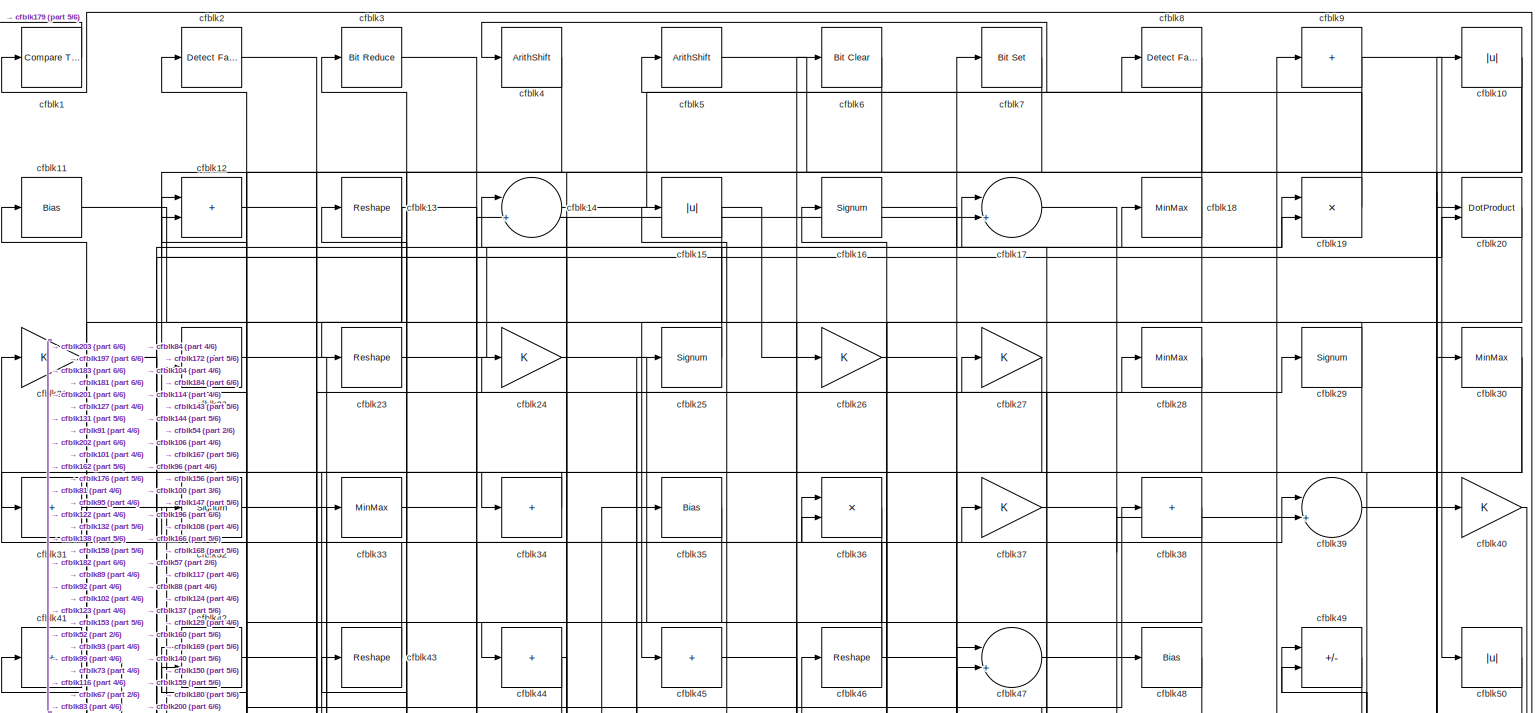
[diagram: root canvas - part 1/6, full width, top band]
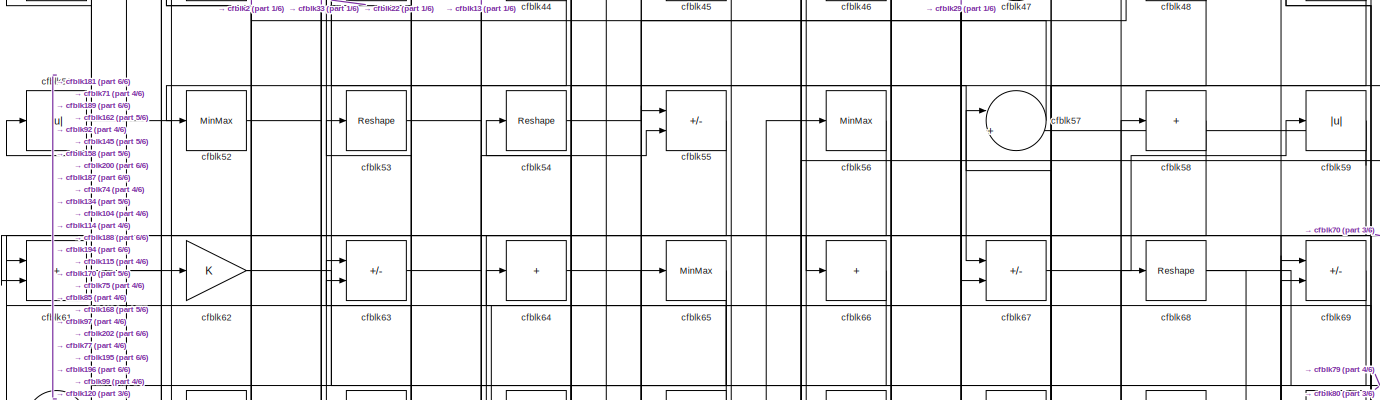
[diagram: root canvas - part 2/6, full width, top band]
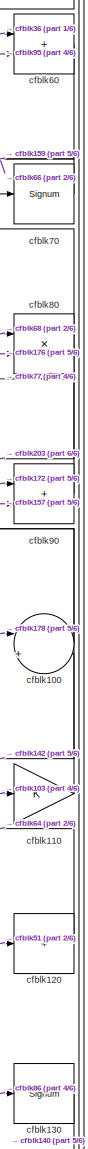
[diagram: root canvas - part 3/6, middle right region]
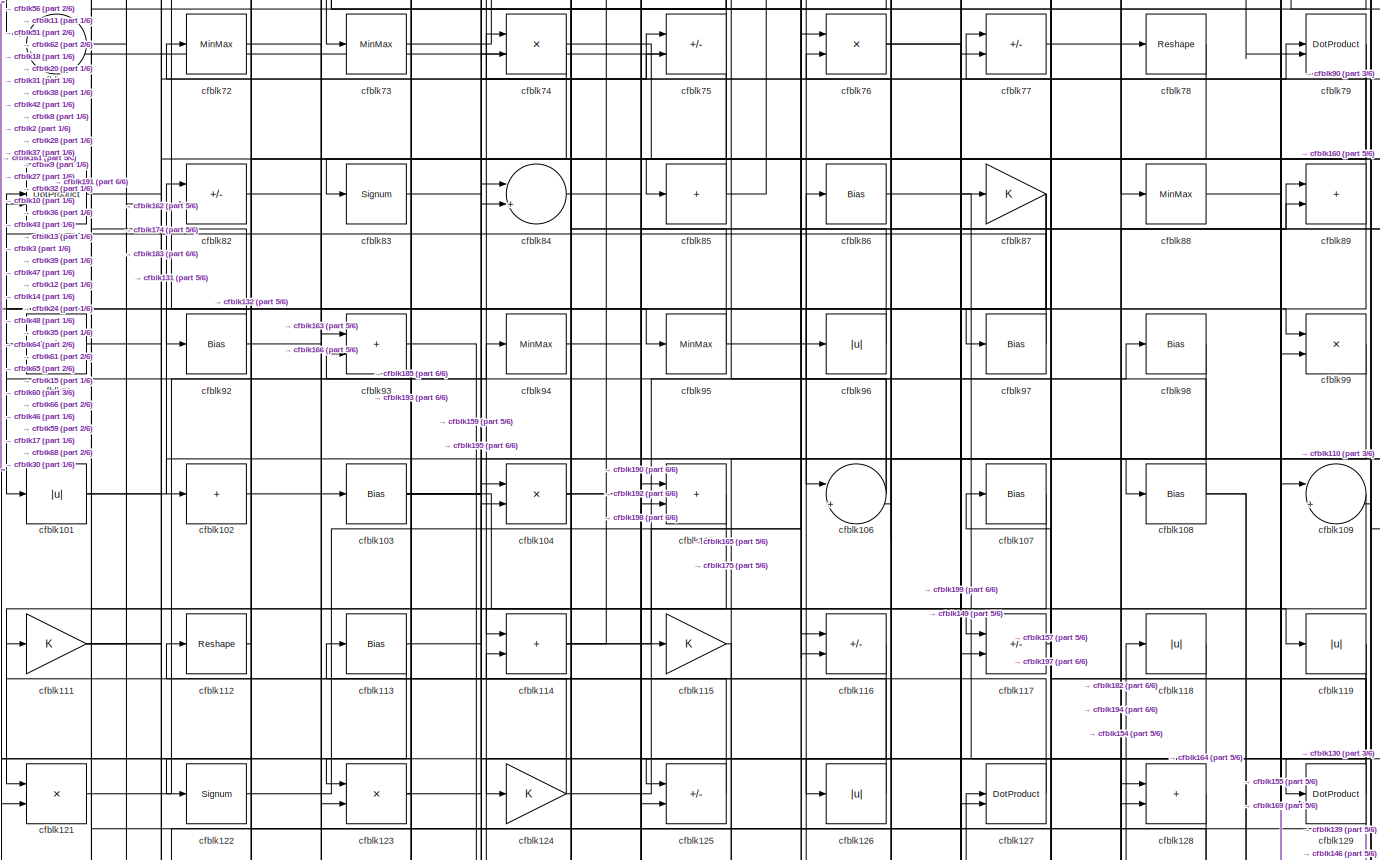
[diagram: root canvas - part 4/6, full width, middle band]
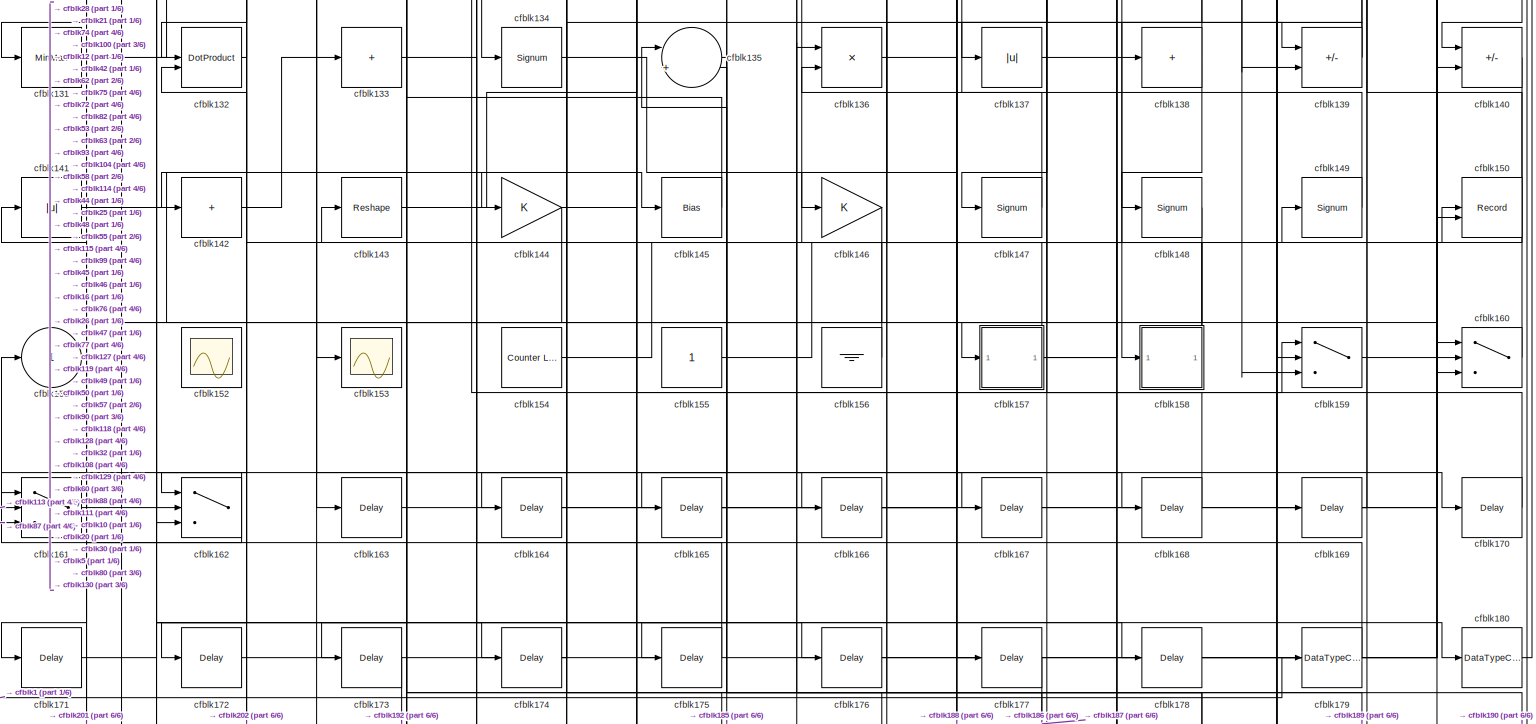
[diagram: root canvas - part 5/6, full width, bottom band]
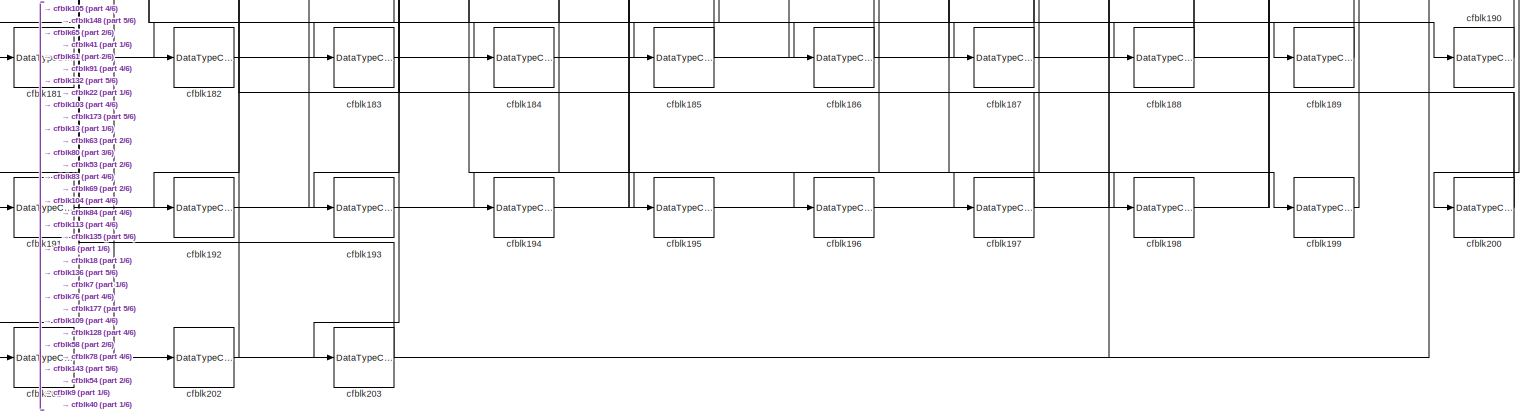
[diagram: root canvas - part 6/6, full width, bottom band]
MODEL slx_80e2cc279460
KIND model
CONFIG AbsTol = auto
CONFIG EnableMultiTasking = off
CONFIG FixedStep = auto
CONFIG MaxStep = auto
CONFIG MinStep = auto
CONFIG RelTol = 1e-3
CONFIG SampleTimeConstraint = Unconstrained
CONFIG SolverName = VariableStepAuto
CONFIG StartTime = 0.0
CONFIG StopTime = 10.0
BLOCK [Reference] cfblk1  REF=hdlsllib/Logic and Bit
Operations/Compare
To Constant
  SourceBlock = hdlsllib/Logic and Bit\nOperations/Compare\nTo Constant
  SourceType = Compare To Constant
BLOCK [Abs] cfblk10
  SaturateOnIntegerOverflow = off
BLOCK [Sum] cfblk100
  Inputs = |++
BLOCK [Abs] cfblk101
  SaturateOnIntegerOverflow = off
BLOCK [Sum] cfblk102
  IconShape = rectangular
  Inputs = +
BLOCK [Bias] cfblk103
  Bias = 0.0
  SaturateOnIntegerOverflow = off
BLOCK [Product] cfblk104
  Inputs = */
  RndMeth = Zero
  SaturateOnIntegerOverflow = on
BLOCK [Sum] cfblk105
  IconShape = rectangular
BLOCK [Sum] cfblk106
  Inputs = |++
BLOCK [Bias] cfblk107
  Bias = 0.0
  SaturateOnIntegerOverflow = off
BLOCK [Bias] cfblk108
  Bias = 0.0
  SaturateOnIntegerOverflow = off
BLOCK [Sum] cfblk109
  Inputs = |++
BLOCK [Bias] cfblk11
  Bias = 0.0
  SaturateOnIntegerOverflow = off
BLOCK [Gain] cfblk110
BLOCK [Gain] cfblk111
BLOCK [Reshape] cfblk112
BLOCK [Bias] cfblk113
  Bias = 0.0
  SaturateOnIntegerOverflow = off
BLOCK [Sum] cfblk114
  IconShape = rectangular
BLOCK [Gain] cfblk115
BLOCK [Sum] cfblk116
  IconShape = rectangular
  Inputs = +-
BLOCK [Sum] cfblk117
  IconShape = rectangular
  Inputs = +-
BLOCK [Abs] cfblk118
  SaturateOnIntegerOverflow = off
BLOCK [Abs] cfblk119
  SaturateOnIntegerOverflow = off
BLOCK [Sum] cfblk12
  IconShape = rectangular
BLOCK [Sum] cfblk120
  IconShape = rectangular
  Inputs = +
BLOCK [Product] cfblk121
  Inputs = */
  RndMeth = Zero
  SaturateOnIntegerOverflow = on
BLOCK [Signum] cfblk122
BLOCK [Product] cfblk123
  Inputs = */
  RndMeth = Zero
  SaturateOnIntegerOverflow = on
BLOCK [Gain] cfblk124
BLOCK [Sum] cfblk125
  IconShape = rectangular
  Inputs = +-
BLOCK [Abs] cfblk126
  SaturateOnIntegerOverflow = off
BLOCK [DotProduct] cfblk127
  OutDataTypeStr = Inherit: Inherit via internal rule
BLOCK [Sum] cfblk128
  IconShape = rectangular
BLOCK [DotProduct] cfblk129
  OutDataTypeStr = Inherit: Inherit via internal rule
BLOCK [Reshape] cfblk13
BLOCK [Signum] cfblk130
BLOCK [MinMax] cfblk131
BLOCK [DotProduct] cfblk132
  OutDataTypeStr = Inherit: Inherit via internal rule
BLOCK [Sum] cfblk133
  IconShape = rectangular
  Inputs = +
BLOCK [Signum] cfblk134
BLOCK [Sum] cfblk135
  Inputs = |++
BLOCK [Product] cfblk136
  Inputs = */
  RndMeth = Zero
  SaturateOnIntegerOverflow = on
BLOCK [Abs] cfblk137
  SaturateOnIntegerOverflow = off
BLOCK [Sum] cfblk138
  IconShape = rectangular
  Inputs = +
BLOCK [Sum] cfblk139
  IconShape = rectangular
  Inputs = +-
BLOCK [Sum] cfblk14
  Inputs = |++
BLOCK [Sum] cfblk140
  IconShape = rectangular
  Inputs = +-
BLOCK [Abs] cfblk141
  SaturateOnIntegerOverflow = off
BLOCK [Sum] cfblk142
  IconShape = rectangular
  Inputs = +
BLOCK [Reshape] cfblk143
BLOCK [Gain] cfblk144
BLOCK [Bias] cfblk145
  Bias = 0.0
  SaturateOnIntegerOverflow = off
BLOCK [Gain] cfblk146
BLOCK [Signum] cfblk147
BLOCK [Signum] cfblk148
BLOCK [Signum] cfblk149
BLOCK [Abs] cfblk15
  SaturateOnIntegerOverflow = off
BLOCK [Record] cfblk150
  CompatibilityTag = XY
  FileSettingsInternal = {"entries":[{"content":{"excelSettings":{"content":{},"type":"Streamout.ExcelSettings"}},"type":"Streamout.FileSettingStorage","uuid":""}],"packageUris":["http:\/\/schema.mathworks.com\/mf0\/streamout_blocks\/R2020a"],"version":"1.0"}
  Layout = [1 1]
  SignalsInternal = {"entries":[{"content":{"signals":[{"content":{"blockPath":[],"dimensions":[1],"domain":"","lineColor":"#a2142f","plots":[1],"port":1,"sid":[""],"signalID":2475,"signalName":"cfblk157"},"type":"RecordBlkView.Signal","uuid":""},{"content":{"blockPath":[],"dimensions":[1],"domain":"","lineColor":"#139fff","plots":[1],"port":2,"sid":[""],"signalID":2479,"signalName":"cfblk10"},"type":"RecordBlkView.S...<+163ch>
  VisualizationBindings = {"xyplotplugin":{"info":[{"series":[{"bindingParametersList":[{"parameter":"X-Axis","signalID":2475,"signalName":"cfblk157"},{"parameter":"Y-Axis","signalID":2479,"signalName":"cfblk10"}],"seriesID":51744}],"subplotID":1}]}}
  st = -1
BLOCK [Outport] cfblk151
  VectorParamsAs1DForOutWhenUnconnected = off
BLOCK [Scope] cfblk152
  Floating = on
  NumInputPorts = 1
  ScopeSpecificationString = Simulink.scopes.TimeScopeBlockCfg('CurrentConfiguration', extmgr.ConfigurationSet(extmgr.Configuration('Core','General UI',true,'FigureColor',[0.156862745098039 0.156862745098039 0.156862745098039]),extmgr.Configuration('Core','Source UI',true),extmgr.Configuration('Sources','WiredSimulink',true,'DataLoggingVariableName','ScopeData1','DataLoggingSaveFormat','StructureWithTime','DataLoggingLimitDat...<+2713ch>
BLOCK [Scope] cfblk153
  Floating = off
  NumInputPorts = 1
  ScopeSpecificationString = Simulink.scopes.TimeScopeBlockCfg('CurrentConfiguration', extmgr.ConfigurationSet(extmgr.Configuration('Core','General UI',true),extmgr.Configuration('Core','Source UI',true),extmgr.Configuration('Sources','WiredSimulink',true,'DataLoggingVariableName','ScopeData2','DataLoggingSaveFormat','Array','DataLoggingLimitDataPoints',true,'DataLoggingDecimation','1'),extmgr.Configuration('Visuals','Time Do...<+868ch>
BLOCK [Reference] cfblk154  REF=hdlsllib/Sources/Counter
Limited
  SourceBlock = hdlsllib/Sources/Counter\nLimited
  SourceType = Counter Limited
BLOCK [Constant] cfblk155
  SampleTime = -1
BLOCK [Ground] cfblk156
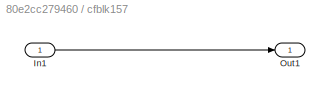
BLOCK [SubSystem] cfblk157
  LibrarySourceBlock = hdlsllib/Ports &\nSubsystems/Subsystem
BLOCK [Inport] cfblk157/In1
BLOCK [Outport] cfblk157/Out1
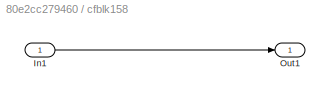
BLOCK [SubSystem] cfblk158
  LibrarySourceBlock = hdlsllib/Ports &\nSubsystems/Subsystem
BLOCK [Inport] cfblk158/In1
BLOCK [Outport] cfblk158/Out1
BLOCK [Switch] cfblk159
  InputSameDT = off
  SaturateOnIntegerOverflow = off
BLOCK [Signum] cfblk16
BLOCK [Switch] cfblk160
  InputSameDT = off
  SaturateOnIntegerOverflow = off
BLOCK [Switch] cfblk161
  InputSameDT = off
  SaturateOnIntegerOverflow = off
BLOCK [Switch] cfblk162
  InputSameDT = off
  SaturateOnIntegerOverflow = off
BLOCK [Delay] cfblk163
  InputPortMap = u0
  SampleTime = 1
BLOCK [Delay] cfblk164
  InputPortMap = u0
  SampleTime = 1
BLOCK [Delay] cfblk165
  InputPortMap = u0
  SampleTime = 1
BLOCK [Delay] cfblk166
  InputPortMap = u0
  SampleTime = 1
BLOCK [Delay] cfblk167
  InputPortMap = u0
  SampleTime = 1
BLOCK [Delay] cfblk168
  InputPortMap = u0
  SampleTime = 1
BLOCK [Delay] cfblk169
  InputPortMap = u0
  SampleTime = 1
BLOCK [Sum] cfblk17
  Inputs = |++
BLOCK [Delay] cfblk170
  InputPortMap = u0
  SampleTime = 1
BLOCK [Delay] cfblk171
  InputPortMap = u0
  SampleTime = 1
BLOCK [Delay] cfblk172
  InputPortMap = u0
  SampleTime = 1
BLOCK [Delay] cfblk173
  InputPortMap = u0
  SampleTime = 1
BLOCK [Delay] cfblk174
  InputPortMap = u0
  SampleTime = 1
BLOCK [Delay] cfblk175
  InputPortMap = u0
  SampleTime = 1
BLOCK [Delay] cfblk176
  InputPortMap = u0
  SampleTime = 1
BLOCK [Delay] cfblk177
  InputPortMap = u0
  SampleTime = 1
BLOCK [Delay] cfblk178
  InputPortMap = u0
  SampleTime = 1
BLOCK [DataTypeConversion] cfblk179
  OutDataTypeStr = uint8
  RndMeth = Floor
  SaturateOnIntegerOverflow = off
BLOCK [MinMax] cfblk18
BLOCK [DataTypeConversion] cfblk180
  OutDataTypeStr = uint8
  RndMeth = Floor
  SaturateOnIntegerOverflow = off
BLOCK [DataTypeConversion] cfblk181
  OutDataTypeStr = boolean
  RndMeth = Floor
  SaturateOnIntegerOverflow = off
BLOCK [DataTypeConversion] cfblk182
  OutDataTypeStr = uint8
  RndMeth = Floor
  SaturateOnIntegerOverflow = off
BLOCK [DataTypeConversion] cfblk183
  OutDataTypeStr = boolean
  RndMeth = Floor
  SaturateOnIntegerOverflow = off
BLOCK [DataTypeConversion] cfblk184
  OutDataTypeStr = uint8
  RndMeth = Floor
  SaturateOnIntegerOverflow = off
BLOCK [DataTypeConversion] cfblk185
  OutDataTypeStr = uint8
  RndMeth = Floor
  SaturateOnIntegerOverflow = off
BLOCK [DataTypeConversion] cfblk186
  OutDataTypeStr = uint8
  RndMeth = Floor
  SaturateOnIntegerOverflow = off
BLOCK [DataTypeConversion] cfblk187
  OutDataTypeStr = uint8
  RndMeth = Floor
  SaturateOnIntegerOverflow = off
BLOCK [DataTypeConversion] cfblk188
  RndMeth = Floor
  SaturateOnIntegerOverflow = off
BLOCK [DataTypeConversion] cfblk189
  OutDataTypeStr = uint8
  RndMeth = Floor
  SaturateOnIntegerOverflow = off
BLOCK [Product] cfblk19
  Inputs = */
  RndMeth = Zero
  SaturateOnIntegerOverflow = on
BLOCK [DataTypeConversion] cfblk190
  OutDataTypeStr = uint8
  RndMeth = Floor
  SaturateOnIntegerOverflow = off
BLOCK [DataTypeConversion] cfblk191
  OutDataTypeStr = uint8
  RndMeth = Floor
  SaturateOnIntegerOverflow = off
BLOCK [DataTypeConversion] cfblk192
  OutDataTypeStr = uint8
  RndMeth = Floor
  SaturateOnIntegerOverflow = off
BLOCK [DataTypeConversion] cfblk193
  OutDataTypeStr = uint8
  RndMeth = Floor
  SaturateOnIntegerOverflow = off
BLOCK [DataTypeConversion] cfblk194
  OutDataTypeStr = uint8
  RndMeth = Floor
  SaturateOnIntegerOverflow = off
BLOCK [DataTypeConversion] cfblk195
  OutDataTypeStr = uint8
  RndMeth = Floor
  SaturateOnIntegerOverflow = off
BLOCK [DataTypeConversion] cfblk196
  OutDataTypeStr = uint8
  RndMeth = Floor
  SaturateOnIntegerOverflow = off
BLOCK [DataTypeConversion] cfblk197
  OutDataTypeStr = uint8
  RndMeth = Floor
  SaturateOnIntegerOverflow = off
BLOCK [DataTypeConversion] cfblk198
  OutDataTypeStr = uint8
  RndMeth = Floor
  SaturateOnIntegerOverflow = off
BLOCK [DataTypeConversion] cfblk199
  OutDataTypeStr = uint8
  RndMeth = Floor
  SaturateOnIntegerOverflow = off
BLOCK [Reference] cfblk2  REF=hdlsllib/Logic and Bit
Operations/Detect Fall
Negative
  SourceBlock = hdlsllib/Logic and Bit\nOperations/Detect Fall\nNegative
  SourceType = Detect Fall Negative
BLOCK [DotProduct] cfblk20
  OutDataTypeStr = Inherit: Inherit via internal rule
BLOCK [DataTypeConversion] cfblk200
  RndMeth = Floor
  SaturateOnIntegerOverflow = off
BLOCK [DataTypeConversion] cfblk201
  OutDataTypeStr = uint8
  RndMeth = Floor
  SaturateOnIntegerOverflow = off
BLOCK [DataTypeConversion] cfblk202
  RndMeth = Floor
  SaturateOnIntegerOverflow = off
BLOCK [DataTypeConversion] cfblk203
  OutDataTypeStr = uint8
  RndMeth = Floor
  SaturateOnIntegerOverflow = off
BLOCK [Gain] cfblk21
BLOCK [Product] cfblk22
  Inputs = */
  RndMeth = Zero
  SaturateOnIntegerOverflow = on
BLOCK [Reshape] cfblk23
BLOCK [Gain] cfblk24
BLOCK [Signum] cfblk25
BLOCK [Gain] cfblk26
BLOCK [Gain] cfblk27
BLOCK [MinMax] cfblk28
BLOCK [Signum] cfblk29
BLOCK [Reference] cfblk3  REF=hdlsllib/Logic and Bit
Operations/Bit Reduce
  SourceBlock = hdlsllib/Logic and Bit\nOperations/Bit Reduce
  SourceType = Bit Reduce
BLOCK [MinMax] cfblk30
BLOCK [Sum] cfblk31
  IconShape = rectangular
  Inputs = +
BLOCK [Signum] cfblk32
BLOCK [MinMax] cfblk33
BLOCK [Sum] cfblk34
  IconShape = rectangular
  Inputs = +
BLOCK [Bias] cfblk35
  Bias = 0.0
  SaturateOnIntegerOverflow = off
BLOCK [Product] cfblk36
  Inputs = */
  RndMeth = Zero
  SaturateOnIntegerOverflow = on
BLOCK [Gain] cfblk37
BLOCK [Sum] cfblk38
  IconShape = rectangular
  Inputs = +
BLOCK [Sum] cfblk39
  Inputs = |++
BLOCK [ArithShift] cfblk4
  BitShiftNumber = 8
  InputPortMap = u0
BLOCK [Gain] cfblk40
BLOCK [Sum] cfblk41
  IconShape = rectangular
  Inputs = +
BLOCK [Product] cfblk42
  Inputs = */
  RndMeth = Zero
  SaturateOnIntegerOverflow = on
BLOCK [Reshape] cfblk43
BLOCK [Sum] cfblk44
  IconShape = rectangular
  Inputs = +
BLOCK [Sum] cfblk45
  IconShape = rectangular
  Inputs = +
BLOCK [Reshape] cfblk46
BLOCK [Sum] cfblk47
  Inputs = |++
BLOCK [Bias] cfblk48
  Bias = 0.0
  SaturateOnIntegerOverflow = off
BLOCK [Sum] cfblk49
  IconShape = rectangular
  Inputs = +-
BLOCK [ArithShift] cfblk5
  BitShiftNumber = 8
  InputPortMap = u0
BLOCK [Abs] cfblk50
  SaturateOnIntegerOverflow = off
BLOCK [Abs] cfblk51
  SaturateOnIntegerOverflow = off
BLOCK [MinMax] cfblk52
BLOCK [Reshape] cfblk53
BLOCK [Reshape] cfblk54
BLOCK [Sum] cfblk55
  IconShape = rectangular
  Inputs = +-
BLOCK [MinMax] cfblk56
BLOCK [Sum] cfblk57
  Inputs = |++
BLOCK [Sum] cfblk58
  IconShape = rectangular
  Inputs = +
BLOCK [Abs] cfblk59
  SaturateOnIntegerOverflow = off
BLOCK [Reference] cfblk6  REF=simulink/Logic and Bit
Operations/Bit Clear
  LibrarySourceBlock = hdlsllib/Logic and Bit\nOperations/Bit Clear
  SourceBlock = simulink/Logic and Bit\nOperations/Bit Clear
  SourceType = Bit Clear
BLOCK [Sum] cfblk60
  IconShape = rectangular
BLOCK [Sum] cfblk61
  IconShape = rectangular
BLOCK [Gain] cfblk62
BLOCK [Sum] cfblk63
  IconShape = rectangular
  Inputs = +-
BLOCK [Sum] cfblk64
  IconShape = rectangular
  Inputs = +
BLOCK [MinMax] cfblk65
BLOCK [Sum] cfblk66
  IconShape = rectangular
  Inputs = +
BLOCK [Sum] cfblk67
  IconShape = rectangular
  Inputs = +-
BLOCK [Reshape] cfblk68
BLOCK [Sum] cfblk69
  IconShape = rectangular
  Inputs = +-
BLOCK [Reference] cfblk7  REF=simulink/Logic and Bit
Operations/Bit Set
  LibrarySourceBlock = hdlsllib/Logic and Bit\nOperations/Bit Set
  SourceBlock = simulink/Logic and Bit\nOperations/Bit Set
  SourceType = Bit Set
BLOCK [Signum] cfblk70
BLOCK [Sum] cfblk71
  Inputs = |++
BLOCK [MinMax] cfblk72
BLOCK [MinMax] cfblk73
BLOCK [Product] cfblk74
  Inputs = */
  RndMeth = Zero
  SaturateOnIntegerOverflow = on
BLOCK [Sum] cfblk75
  IconShape = rectangular
  Inputs = +-
BLOCK [Product] cfblk76
  Inputs = */
  RndMeth = Zero
  SaturateOnIntegerOverflow = on
BLOCK [Sum] cfblk77
  IconShape = rectangular
  Inputs = +-
BLOCK [Reshape] cfblk78
BLOCK [DotProduct] cfblk79
  OutDataTypeStr = Inherit: Inherit via internal rule
BLOCK [Reference] cfblk8  REF=hdlsllib/Logic and Bit
Operations/Detect Fall
Nonpositive
  SourceBlock = hdlsllib/Logic and Bit\nOperations/Detect Fall\nNonpositive
  SourceType = Detect Fall Nonpositive
BLOCK [Product] cfblk80
  Inputs = */
  RndMeth = Zero
  SaturateOnIntegerOverflow = on
BLOCK [DotProduct] cfblk81
  OutDataTypeStr = Inherit: Inherit via internal rule
BLOCK [Sum] cfblk82
  IconShape = rectangular
  Inputs = +-
BLOCK [Signum] cfblk83
BLOCK [Sum] cfblk84
  Inputs = |++
BLOCK [Sum] cfblk85
  IconShape = rectangular
  Inputs = +
BLOCK [Bias] cfblk86
  Bias = 0.0
  SaturateOnIntegerOverflow = off
BLOCK [Gain] cfblk87
BLOCK [MinMax] cfblk88
BLOCK [Sum] cfblk89
  IconShape = rectangular
BLOCK [Sum] cfblk9
  IconShape = rectangular
  Inputs = +
BLOCK [Sum] cfblk90
  IconShape = rectangular
BLOCK [Reshape] cfblk91
BLOCK [Bias] cfblk92
  Bias = 0.0
  SaturateOnIntegerOverflow = off
BLOCK [Sum] cfblk93
  IconShape = rectangular
BLOCK [MinMax] cfblk94
BLOCK [MinMax] cfblk95
BLOCK [Abs] cfblk96
  SaturateOnIntegerOverflow = off
BLOCK [Bias] cfblk97
  Bias = 0.0
  SaturateOnIntegerOverflow = off
BLOCK [Bias] cfblk98
  Bias = 0.0
  SaturateOnIntegerOverflow = off
BLOCK [Product] cfblk99
  Inputs = */
  RndMeth = Zero
  SaturateOnIntegerOverflow = on
NET cfblk100:1 -> cfblk142:1, cfblk36:1, cfblk60:1
NET cfblk101:1 -> cfblk20:2, cfblk82:1
LINE cfblk102:1 -> cfblk37:1
NET cfblk103:1 -> cfblk110:1, cfblk119:1, cfblk128:2, cfblk75:1, cfblk75:2
NET cfblk104:1 -> cfblk198:1, cfblk24:1, cfblk65:1
LINE cfblk105:1 -> cfblk191:1
NET cfblk106:1 -> cfblk15:1, cfblk86:1
LINE cfblk107:1 -> cfblk121:1
NET cfblk108:1 -> cfblk139:2, cfblk159:3, cfblk81:2
LINE cfblk109:1 -> cfblk197:1
NET cfblk10:1 -> cfblk150:2, cfblk83:1
LINE cfblk110:1 -> cfblk100:2
NET cfblk111:1 -> cfblk174:1, cfblk79:1, cfblk82:2
LINE cfblk112:1 -> cfblk72:1
NET cfblk113:1 -> cfblk104:2, cfblk161:2
NET cfblk114:1 -> cfblk117:1, cfblk35:1, cfblk98:1
LINE cfblk115:1 -> cfblk165:1
LINE cfblk116:1 -> cfblk125:1
LINE cfblk117:1 -> cfblk17:1
LINE cfblk118:1 -> cfblk121:2
NET cfblk119:1 -> cfblk125:2, cfblk157:1
LINE cfblk11:1 -> cfblk116:2
LINE cfblk120:1 -> cfblk64:1
LINE cfblk121:1 -> cfblk94:1
LINE cfblk122:1 -> cfblk89:2
NET cfblk123:1 -> cfblk39:1, cfblk43:1
NET cfblk124:1 -> cfblk76:1, cfblk93:2
LINE cfblk125:1 -> cfblk112:1
LINE cfblk126:1 -> cfblk74:1
LINE cfblk127:1 -> cfblk11:1
LINE cfblk128:1 -> cfblk164:1
NET cfblk129:1 -> cfblk107:1, cfblk146:1, cfblk27:1
LINE cfblk12:1 -> cfblk99:1
LINE cfblk130:1 -> cfblk140:1
LINE cfblk131:1 -> cfblk87:1
LINE cfblk132:1 -> cfblk12:1
LINE cfblk133:1 -> cfblk178:1
LINE cfblk134:1 -> cfblk177:1
LINE cfblk135:1 -> cfblk185:1
LINE cfblk136:1 -> cfblk188:1
LINE cfblk137:1 -> cfblk158:1
NET cfblk138:1 -> cfblk148:1, cfblk32:1
NET cfblk139:1 -> cfblk111:1, cfblk138:1
NET cfblk13:1 -> cfblk52:1, cfblk84:2, cfblk91:1
LINE cfblk140:1 -> cfblk149:1
NET cfblk141:1 -> cfblk145:1, cfblk160:3
LINE cfblk142:1 -> cfblk133:1
LINE cfblk143:1 -> cfblk25:1
NET cfblk144:1 -> cfblk173:1, cfblk48:1
LINE cfblk145:1 -> cfblk53:1
LINE cfblk146:1 -> cfblk171:1
LINE cfblk147:1 -> cfblk16:1
LINE cfblk148:1 -> cfblk201:1
LINE cfblk149:1 -> cfblk127:1
LINE cfblk14:1 -> cfblk8:1
LINE cfblk154:1 -> cfblk118:1
LINE cfblk155:1 -> cfblk129:2
LINE cfblk156:1 -> cfblk46:1
LINE cfblk157/In1:1 -> cfblk157/Out1:1
NET cfblk157:1 -> cfblk150:1, cfblk76:2, cfblk90:2
LINE cfblk158/In1:1 -> cfblk158/Out1:1
NET cfblk158:1 -> cfblk42:1, cfblk63:1
LINE cfblk159:1 -> cfblk30:1
NET cfblk15:1 -> cfblk26:1, cfblk45:1
LINE cfblk160:1 -> cfblk49:1
LINE cfblk161:1 -> cfblk170:1
NET cfblk162:1 -> cfblk151:1, cfblk161:1
LINE cfblk163:1 -> cfblk127:2
LINE cfblk164:1 -> cfblk77:2
LINE cfblk165:1 -> cfblk160:1
LINE cfblk166:1 -> cfblk47:2
LINE cfblk167:1 -> cfblk20:1
LINE cfblk168:1 -> cfblk57:1
LINE cfblk169:1 -> cfblk49:2
LINE cfblk16:1 -> cfblk19:2
LINE cfblk170:1 -> cfblk55:1
LINE cfblk171:1 -> cfblk180:1
LINE cfblk172:1 -> cfblk90:1
LINE cfblk173:1 -> cfblk192:1
LINE cfblk174:1 -> cfblk114:2
LINE cfblk175:1 -> cfblk104:1
LINE cfblk176:1 -> cfblk80:2
LINE cfblk177:1 -> cfblk186:1
LINE cfblk178:1 -> cfblk100:1
LINE cfblk179:1 -> cfblk141:1
LINE cfblk17:1 -> cfblk88:1
LINE cfblk180:1 -> cfblk1:1
LINE cfblk181:1 -> cfblk7:1
LINE cfblk182:1 -> cfblk78:1
LINE cfblk183:1 -> cfblk6:1
LINE cfblk184:1 -> cfblk9:1
LINE cfblk185:1 -> cfblk113:1
LINE cfblk186:1 -> cfblk135:1
LINE cfblk187:1 -> cfblk135:2
NET cfblk188:1 -> cfblk143:1, cfblk54:1
LINE cfblk189:1 -> cfblk136:1
NET cfblk18:1 -> cfblk196:1, cfblk5:1
LINE cfblk190:1 -> cfblk136:2
LINE cfblk191:1 -> cfblk103:1
LINE cfblk192:1 -> cfblk105:1
LINE cfblk193:1 -> cfblk105:2
LINE cfblk194:1 -> cfblk128:1
LINE cfblk195:1 -> cfblk69:1
LINE cfblk196:1 -> cfblk69:2
LINE cfblk197:1 -> cfblk22:2
LINE cfblk198:1 -> cfblk109:1
LINE cfblk199:1 -> cfblk109:2
LINE cfblk19:1 -> cfblk4:1
LINE cfblk1:1 -> cfblk179:1
NET cfblk200:1 -> cfblk13:1, cfblk63:2
LINE cfblk201:1 -> cfblk40:1
NET cfblk202:1 -> cfblk132:2, cfblk58:1
LINE cfblk203:1 -> cfblk41:1
LINE cfblk20:1 -> cfblk106:2
NET cfblk21:1 -> cfblk176:1, cfblk34:1
LINE cfblk22:1 -> cfblk67:1
LINE cfblk23:1 -> cfblk19:1
LINE cfblk24:1 -> cfblk96:1
LINE cfblk25:1 -> cfblk14:1
LINE cfblk26:1 -> cfblk168:1
LINE cfblk27:1 -> cfblk73:1
LINE cfblk28:1 -> cfblk131:1
NET cfblk29:1 -> cfblk23:1, cfblk67:2
LINE cfblk2:1 -> cfblk93:1
NET cfblk30:1 -> cfblk129:1, cfblk162:2
LINE cfblk31:1 -> cfblk95:1
NET cfblk32:1 -> cfblk116:1, cfblk36:2
LINE cfblk33:1 -> cfblk17:2
LINE cfblk34:1 -> cfblk31:1
LINE cfblk35:1 -> cfblk44:1
LINE cfblk36:1 -> cfblk123:1
LINE cfblk37:1 -> cfblk39:2
LINE cfblk38:1 -> cfblk92:1
LINE cfblk39:1 -> cfblk10:1
LINE cfblk3:1 -> cfblk84:1
LINE cfblk40:1 -> cfblk200:1
LINE cfblk41:1 -> cfblk202:1
LINE cfblk42:1 -> cfblk153:1
LINE cfblk43:1 -> cfblk21:1
NET cfblk44:1 -> cfblk144:1, cfblk172:1
LINE cfblk45:1 -> cfblk167:1
NET cfblk46:1 -> cfblk108:1, cfblk3:1
LINE cfblk47:1 -> cfblk38:1
LINE cfblk48:1 -> cfblk124:1
LINE cfblk49:1 -> cfblk137:1
LINE cfblk4:1 -> cfblk22:1
LINE cfblk50:1 -> cfblk147:1
LINE cfblk51:1 -> cfblk120:1
LINE cfblk52:1 -> cfblk33:1
LINE cfblk53:1 -> cfblk187:1
LINE cfblk54:1 -> cfblk29:1
LINE cfblk55:1 -> cfblk61:2
LINE cfblk56:1 -> cfblk71:1
LINE cfblk57:1 -> cfblk2:1
LINE cfblk58:1 -> cfblk134:1
NET cfblk59:1 -> cfblk57:2, cfblk97:1
LINE cfblk5:1 -> cfblk140:2
LINE cfblk60:1 -> cfblk159:2
LINE cfblk61:1 -> cfblk189:1
NET cfblk62:1 -> cfblk162:1, cfblk99:2
LINE cfblk63:1 -> cfblk55:2
LINE cfblk64:1 -> cfblk115:1
NET cfblk65:1 -> cfblk181:1, cfblk74:2
LINE cfblk66:1 -> cfblk114:1
LINE cfblk67:1 -> cfblk59:1
NET cfblk68:1 -> cfblk79:2, cfblk80:1
LINE cfblk69:1 -> cfblk194:1
LINE cfblk6:1 -> cfblk184:1
LINE cfblk70:1 -> cfblk66:1
LINE cfblk71:1 -> cfblk62:1
LINE cfblk72:1 -> cfblk163:1
LINE cfblk73:1 -> cfblk47:1
NET cfblk74:1 -> cfblk160:2, cfblk162:3
NET cfblk75:1 -> cfblk132:1, cfblk61:1
NET cfblk76:1 -> cfblk139:1, cfblk199:1
LINE cfblk77:1 -> cfblk68:1
LINE cfblk78:1 -> cfblk193:1
NET cfblk79:1 -> cfblk102:1, cfblk85:1
LINE cfblk7:1 -> cfblk182:1
NET cfblk80:1 -> cfblk203:1, cfblk70:1
LINE cfblk81:1 -> cfblk18:1
LINE cfblk82:1 -> cfblk166:1
LINE cfblk83:1 -> cfblk195:1
LINE cfblk84:1 -> cfblk190:1
NET cfblk85:1 -> cfblk56:1, cfblk71:2
LINE cfblk86:1 -> cfblk130:1
NET cfblk87:1 -> cfblk101:1, cfblk117:2, cfblk161:3
LINE cfblk88:1 -> cfblk169:1
NET cfblk89:1 -> cfblk106:1, cfblk42:2
LINE cfblk8:1 -> cfblk122:1
LINE cfblk90:1 -> cfblk77:1
LINE cfblk91:1 -> cfblk183:1
NET cfblk92:1 -> cfblk28:1, cfblk51:1
LINE cfblk93:1 -> cfblk159:1
LINE cfblk94:1 -> cfblk89:1
NET cfblk95:1 -> cfblk12:2, cfblk60:2
LINE cfblk96:1 -> cfblk14:2
LINE cfblk97:1 -> cfblk81:1
LINE cfblk98:1 -> cfblk126:1
LINE cfblk99:1 -> cfblk175:1
NET cfblk9:1 -> cfblk123:2, cfblk50:1
note: NET lines group one-source signal fan-out (src -> all destinations, sorted); 1:1 wires keep LINE
